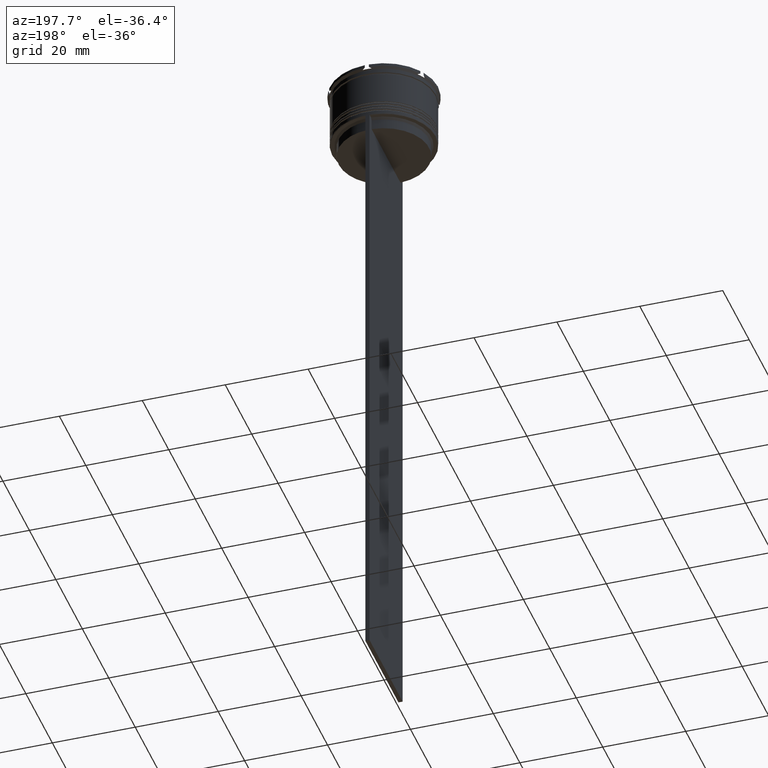
[diagram: clean part render]
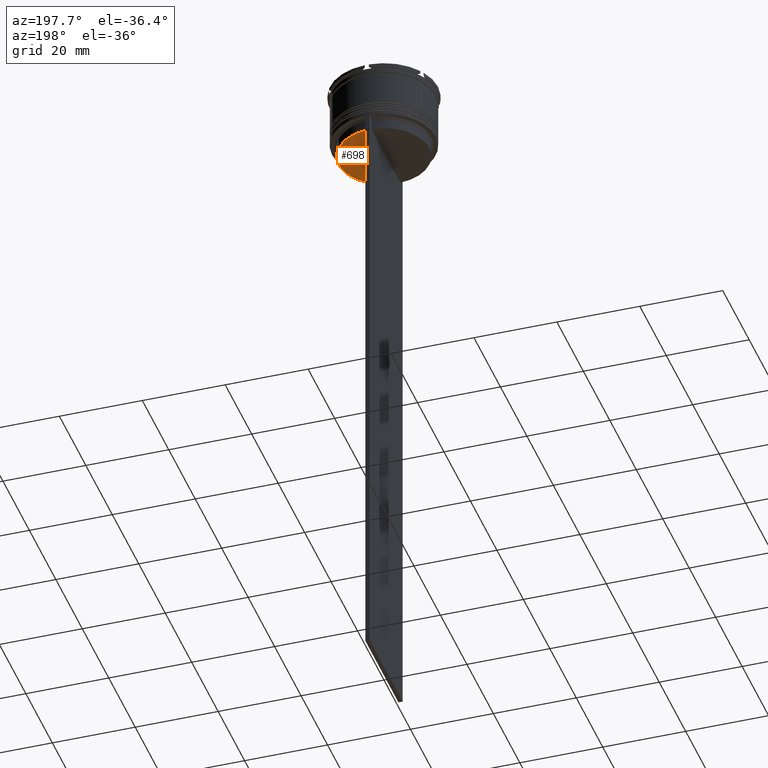
[diagram: same view with one face highlighted and labeled with its STEP entity id]
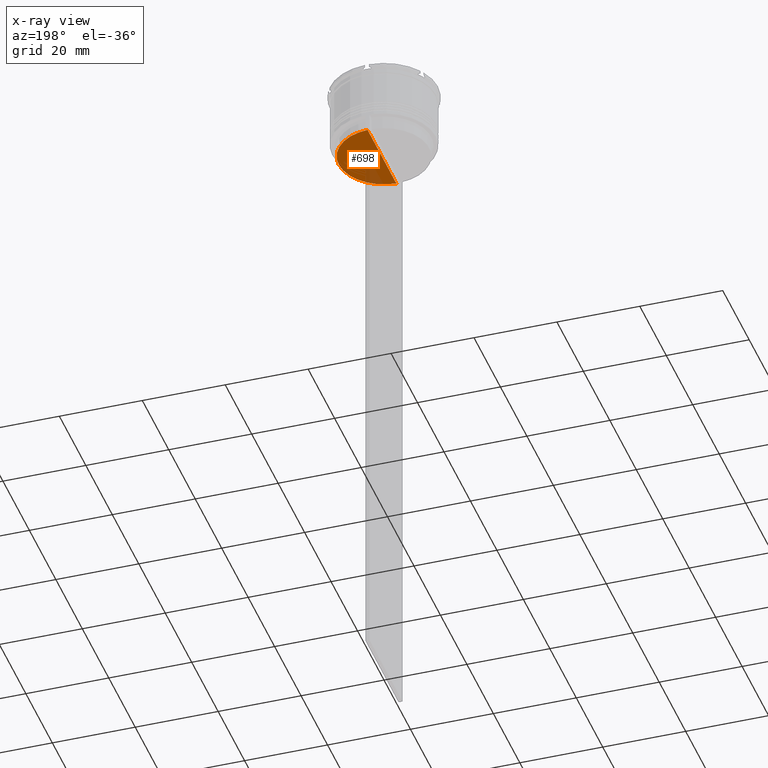
[diagram: x-ray of the same camera — body ghosted, the highlighted face saturated]
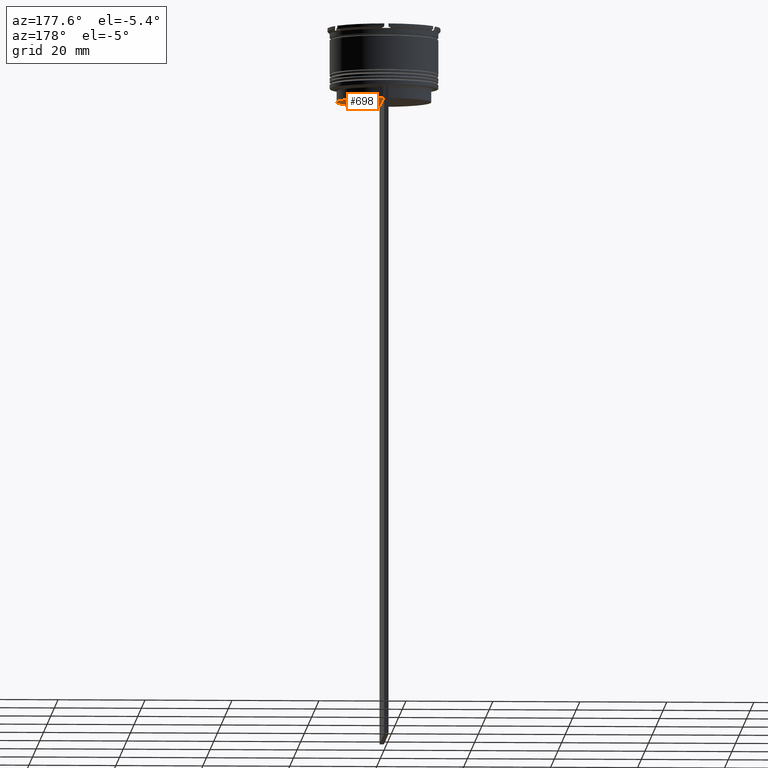
[diagram: same view with one face highlighted and labeled with its STEP entity id]
A machine part, auxiliary view. The second image highlights one B-rep face of the part: STEP entity #698.
The next image is the same camera in x-ray: the body ghosted, the highlighted face saturated — about 13% of this face is hidden behind the body in this view.
A second angle (auxiliary view) of the same face is appended — the face is thin or edge-on in the first view.
In plain terms, the highlighted planar face has unit normal (0, -0, 1).
Its self-contained STEP definition (entity closure, byte-faithful):
#91 = CARTESIAN_POINT ( 'NONE',  ( 0.000000000000000000, 0.000000000000000000, -17.00000000000000000 ) ) ;
#100 = VERTEX_POINT ( 'NONE', #1003 ) ;
#161 = CARTESIAN_POINT ( 'NONE',  ( 0.000000000000000000, 10.90000000000000213, -17.00000000000000000 ) ) ;
#268 = CIRCLE ( 'NONE', #640, 10.90000000000000213 ) ;
#519 = CARTESIAN_POINT ( 'NONE',  ( 0.5000000000000000000, 10.90000000000000213, -17.00000000000000000 ) ) ;
#640 = AXIS2_PLACEMENT_3D ( 'NONE', #1367, #934, #1585 ) ;
#698 = ADVANCED_FACE ( 'NONE', ( #2808 ), #2152, .F. ) ;
#712 = ORIENTED_EDGE ( 'NONE', *, *, #2432, .F. ) ;
#934 = DIRECTION ( 'NONE',  ( -0.000000000000000000, -0.000000000000000000, 1.000000000000000000 ) ) ;
#1003 = CARTESIAN_POINT ( 'NONE',  ( 0.5000000000000000000, 10.88852607105296144, -17.00000000000000000 ) ) ;
#1012 = DIRECTION ( 'NONE',  ( 0.000000000000000000, -1.000000000000000000, 0.000000000000000000 ) ) ;
#1018 = VERTEX_POINT ( 'NONE', #1560 ) ;
#1088 = CARTESIAN_POINT ( 'NONE',  ( 10.90000000000000213, 0.000000000000000000, -17.00000000000000000 ) ) ;
#1367 = CARTESIAN_POINT ( 'NONE',  ( 0.000000000000000000, 0.000000000000000000, -17.00000000000000000 ) ) ;
#1414 = EDGE_LOOP ( 'NONE', ( #2471, #2227, #712 ) ) ;
#1429 = VECTOR ( 'NONE', #1012, 1000.000000000000000 ) ;
#1440 = DIRECTION ( 'NONE',  ( -0.000000000000000000, -0.000000000000000000, 1.000000000000000000 ) ) ;
#1491 = EDGE_CURVE ( 'NONE', #1793, #100, #268, .T. ) ;
#1560 = CARTESIAN_POINT ( 'NONE',  ( 0.5000000000000000000, -10.88852607105296144, -17.00000000000000000 ) ) ;
#1585 = DIRECTION ( 'NONE',  ( 1.000000000000000000, 0.000000000000000000, 0.000000000000000000 ) ) ;
#1631 = DIRECTION ( 'NONE',  ( 1.000000000000000000, 0.000000000000000000, 0.000000000000000000 ) ) ;
#1730 = CIRCLE ( 'NONE', #2757, 10.90000000000000213 ) ;
#1793 = VERTEX_POINT ( 'NONE', #1088 ) ;
#1934 = DIRECTION ( 'NONE',  ( 0.000000000000000000, -0.000000000000000000, 1.000000000000000000 ) ) ;
#2089 = EDGE_CURVE ( 'NONE', #100, #1018, #2746, .T. ) ;
#2152 = PLANE ( 'NONE',  #2820 ) ;
#2227 = ORIENTED_EDGE ( 'NONE', *, *, #1491, .F. ) ;
#2229 = DIRECTION ( 'NONE',  ( 1.000000000000000000, 0.000000000000000000, 0.000000000000000000 ) ) ;
#2432 = EDGE_CURVE ( 'NONE', #1018, #1793, #1730, .T. ) ;
#2471 = ORIENTED_EDGE ( 'NONE', *, *, #2089, .F. ) ;
#2746 = LINE ( 'NONE', #519, #1429 ) ;
#2757 = AXIS2_PLACEMENT_3D ( 'NONE', #91, #1440, #1631 ) ;
#2808 = FACE_OUTER_BOUND ( 'NONE', #1414, .T. ) ;
#2820 = AXIS2_PLACEMENT_3D ( 'NONE', #161, #1934, #2229 ) ;